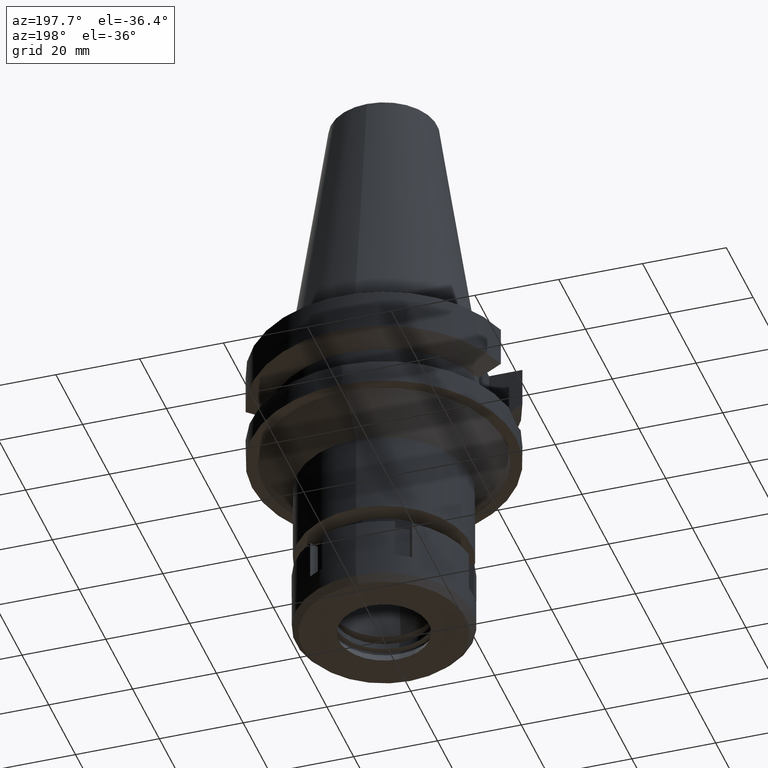
[diagram: clean part render]
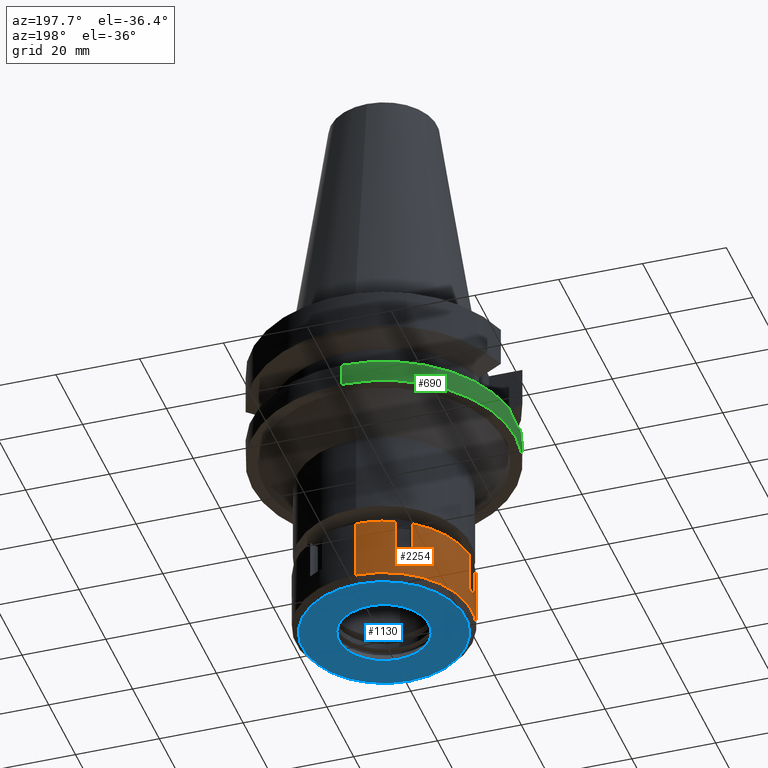
[diagram: same view with three faces highlighted in distinct colors, each labeled with its STEP entity id]
A machine part, auxiliary view with three faces highlighted in distinct colors.
Their STEP definitions:

[orange] entity #2254 — the highlighted cylindrical surface (partial cylindrical patch) has radius 21 mm, axis along (0, 0, -1).
#22 = VERTEX_POINT ( 'NONE', #2840 ) ;
#41 = CARTESIAN_POINT ( 'NONE',  ( 0.0000000000000000000, 21.00000000000000000, -14.50000000000000000 ) ) ;
#71 = LINE ( 'NONE', #873, #656 ) ;
#146 = CARTESIAN_POINT ( 'NONE',  ( -8.720221672615998898, -19.10386699022999935, -9.500000000000000000 ) ) ;
#156 = CARTESIAN_POINT ( 'NONE',  ( 0.0000000000000000000, 0.0000000000000000000, 0.0000000000000000000 ) ) ;
#173 = DIRECTION ( 'NONE',  ( 0.0000000000000000000, 0.0000000000000000000, -1.000000000000000000 ) ) ;
#190 = EDGE_CURVE ( 'NONE', #575, #2176, #2456, .T. ) ;
#205 = DIRECTION ( 'NONE',  ( 0.0000000000000000000, 1.000000000000000000, 0.0000000000000000000 ) ) ;
#211 = CARTESIAN_POINT ( 'NONE',  ( -12.18432328774999895, -17.10386699022999935, 0.0000000000000000000 ) ) ;
#241 = AXIS2_PLACEMENT_3D ( 'NONE', #156, #1002, #2939 ) ;
#352 = ORIENTED_EDGE ( 'NONE', *, *, #2846, .F. ) ;
#366 = CIRCLE ( 'NONE', #1463, 21.00000000000000711 ) ;
#374 = EDGE_CURVE ( 'NONE', #3133, #3426, #1601, .T. ) ;
#476 = CIRCLE ( 'NONE', #1730, 20.99999999999999289 ) ;
#483 = AXIS2_PLACEMENT_3D ( 'NONE', #2914, #2319, #2038 ) ;
#513 = VERTEX_POINT ( 'NONE', #636 ) ;
#519 = ORIENTED_EDGE ( 'NONE', *, *, #2204, .F. ) ;
#547 = CIRCLE ( 'NONE', #483, 21.00000000000000711 ) ;
#575 = VERTEX_POINT ( 'NONE', #674 ) ;
#620 = CARTESIAN_POINT ( 'NONE',  ( -20.90454496036999998, 2.000000000000000000, 0.0000000000000000000 ) ) ;
#636 = CARTESIAN_POINT ( 'NONE',  ( -12.18432328774999895, 17.10386699022999935, 0.0000000000000000000 ) ) ;
#656 = VECTOR ( 'NONE', #1182, 1000.000000000000000 ) ;
#674 = CARTESIAN_POINT ( 'NONE',  ( -12.18432328774999895, 17.10386699022999935, -9.500000000000000000 ) ) ;
#708 = EDGE_CURVE ( 'NONE', #3133, #913, #476, .T. ) ;
#728 = DIRECTION ( 'NONE',  ( 0.0000000000000000000, 0.0000000000000000000, -1.000000000000000000 ) ) ;
#774 = LINE ( 'NONE', #1056, #1795 ) ;
#788 = DIRECTION ( 'NONE',  ( -0.9954545219222313834, 0.09523809523810303213, 0.0000000000000000000 ) ) ;
#840 = CARTESIAN_POINT ( 'NONE',  ( -20.90454496036999998, -2.000000000000000000, -9.500000000000000000 ) ) ;
#844 = LINE ( 'NONE', #2247, #1124 ) ;
#848 = EDGE_LOOP ( 'NONE', ( #352, #1403, #2037, #2771, #1783, #1313, #990, #2489, #1125, #1831, #2169, #3167, #519, #2350, #2893, #1119 ) ) ;
#873 = CARTESIAN_POINT ( 'NONE',  ( -8.720221672615000585, -19.10386699022999935, -9.500000000000000000 ) ) ;
#887 = LINE ( 'NONE', #620, #3291 ) ;
#913 = VERTEX_POINT ( 'NONE', #1191 ) ;
#950 = DIRECTION ( 'NONE',  ( 0.0000000000000000000, 0.0000000000000000000, -1.000000000000000000 ) ) ;
#964 = CARTESIAN_POINT ( 'NONE',  ( 0.0000000000000000000, 0.0000000000000000000, 0.0000000000000000000 ) ) ;
#967 = EDGE_CURVE ( 'NONE', #2299, #3007, #71, .T. ) ;
#990 = ORIENTED_EDGE ( 'NONE', *, *, #967, .F. ) ;
#1002 = DIRECTION ( 'NONE',  ( 0.0000000000000000000, 0.0000000000000000000, -1.000000000000000000 ) ) ;
#1056 = CARTESIAN_POINT ( 'NONE',  ( -12.18432328774999895, -17.10386699022999935, 0.0000000000000000000 ) ) ;
#1067 = VERTEX_POINT ( 'NONE', #211 ) ;
#1119 = ORIENTED_EDGE ( 'NONE', *, *, #190, .T. ) ;
#1124 = VECTOR ( 'NONE', #2207, 1000.000000000000000 ) ;
#1125 = ORIENTED_EDGE ( 'NONE', *, *, #1519, .F. ) ;
#1142 = DIRECTION ( 'NONE',  ( 0.0000000000000000000, 0.0000000000000000000, 1.000000000000000000 ) ) ;
#1154 = VERTEX_POINT ( 'NONE', #41 ) ;
#1179 = AXIS2_PLACEMENT_3D ( 'NONE', #964, #3168, #1281 ) ;
#1182 = DIRECTION ( 'NONE',  ( 0.0000000000000000000, 0.0000000000000000000, 1.000000000000000000 ) ) ;
#1191 = CARTESIAN_POINT ( 'NONE',  ( -20.90454496036999998, 2.000000000000000000, -9.500000000000000000 ) ) ;
#1278 = VERTEX_POINT ( 'NONE', #3110 ) ;
#1281 = DIRECTION ( 'NONE',  ( 0.0000000000000000000, -1.000000000000000000, 0.0000000000000000000 ) ) ;
#1299 = DIRECTION ( 'NONE',  ( 0.0000000000000000000, 0.0000000000000000000, 1.000000000000000000 ) ) ;
#1313 = ORIENTED_EDGE ( 'NONE', *, *, #1758, .T. ) ;
#1338 = CARTESIAN_POINT ( 'NONE',  ( -20.90454496036999998, -2.000000000000000000, -9.500000000000000000 ) ) ;
#1391 = AXIS2_PLACEMENT_3D ( 'NONE', #3408, #1770, #2858 ) ;
#1403 = ORIENTED_EDGE ( 'NONE', *, *, #1839, .T. ) ;
#1442 = CIRCLE ( 'NONE', #2916, 20.99999999999999289 ) ;
#1450 = VECTOR ( 'NONE', #1142, 1000.000000000000000 ) ;
#1460 = CIRCLE ( 'NONE', #2073, 21.00000000000000000 ) ;
#1463 = AXIS2_PLACEMENT_3D ( 'NONE', #1806, #950, #1792 ) ;
#1481 = CARTESIAN_POINT ( 'NONE',  ( -20.90454496036999998, -2.000000000000000000, 0.0000000000000000000 ) ) ;
#1519 = EDGE_CURVE ( 'NONE', #1067, #3539, #774, .T. ) ;
#1538 = EDGE_CURVE ( 'NONE', #1067, #3426, #2068, .T. ) ;
#1578 = CIRCLE ( 'NONE', #3468, 21.00000000000000000 ) ;
#1601 = LINE ( 'NONE', #1338, #1450 ) ;
#1606 = VECTOR ( 'NONE', #3162, 1000.000000000000000 ) ;
#1610 = LINE ( 'NONE', #3277, #3173 ) ;
#1633 = CARTESIAN_POINT ( 'NONE',  ( 0.0000000000000000000, 21.00000000000000000, 0.0000000000000000000 ) ) ;
#1686 = VECTOR ( 'NONE', #3370, 1000.000000000000000 ) ;
#1711 = DIRECTION ( 'NONE',  ( 0.0000000000000000000, -1.000000000000000000, 0.0000000000000000000 ) ) ;
#1730 = AXIS2_PLACEMENT_3D ( 'NONE', #2964, #2088, #3496 ) ;
#1758 = EDGE_CURVE ( 'NONE', #1278, #3007, #1460, .T. ) ;
#1770 = DIRECTION ( 'NONE',  ( 0.0000000000000000000, 0.0000000000000000000, -1.000000000000000000 ) ) ;
#1783 = ORIENTED_EDGE ( 'NONE', *, *, #2487, .F. ) ;
#1792 = DIRECTION ( 'NONE',  ( -0.4152486510768949035, -0.9097079519157886818, 0.0000000000000000000 ) ) ;
#1795 = VECTOR ( 'NONE', #2141, 1000.000000000000000 ) ;
#1806 = CARTESIAN_POINT ( 'NONE',  ( 0.0000000000000000000, 0.0000000000000000000, -9.500000000000000000 ) ) ;
#1828 = CARTESIAN_POINT ( 'NONE',  ( 0.0000000000000000000, 0.0000000000000000000, 0.0000000000000000000 ) ) ;
#1831 = ORIENTED_EDGE ( 'NONE', *, *, #1538, .T. ) ;
#1839 = EDGE_CURVE ( 'NONE', #22, #2536, #547, .T. ) ;
#1856 = CARTESIAN_POINT ( 'NONE',  ( 0.0000000000000000000, 0.0000000000000000000, -14.50000000000000000 ) ) ;
#1950 = CARTESIAN_POINT ( 'NONE',  ( -8.720221672615000585, 19.10386699022999935, -9.500000000000000000 ) ) ;
#1986 = LINE ( 'NONE', #2192, #1686 ) ;
#2017 = LINE ( 'NONE', #2312, #1606 ) ;
#2037 = ORIENTED_EDGE ( 'NONE', *, *, #2149, .T. ) ;
#2038 = DIRECTION ( 'NONE',  ( -0.4152486510768949035, 0.9097079519157886818, 0.0000000000000000000 ) ) ;
#2047 = CYLINDRICAL_SURFACE ( 'NONE', #1179, 21.00000000000000000 ) ;
#2065 = FACE_OUTER_BOUND ( 'NONE', #848, .T. ) ;
#2068 = CIRCLE ( 'NONE', #241, 20.99999999999999645 ) ;
#2073 = AXIS2_PLACEMENT_3D ( 'NONE', #3174, #728, #1711 ) ;
#2088 = DIRECTION ( 'NONE',  ( 0.0000000000000000000, 0.0000000000000000000, -1.000000000000000000 ) ) ;
#2116 = DIRECTION ( 'NONE',  ( 0.0000000000000000000, 0.0000000000000000000, -1.000000000000000000 ) ) ;
#2141 = DIRECTION ( 'NONE',  ( 0.0000000000000000000, 0.0000000000000000000, -1.000000000000000000 ) ) ;
#2142 = CARTESIAN_POINT ( 'NONE',  ( -8.720221672615998898, -19.10386699022999935, 0.0000000000000000000 ) ) ;
#2149 = EDGE_CURVE ( 'NONE', #2536, #1154, #1986, .T. ) ;
#2169 = ORIENTED_EDGE ( 'NONE', *, *, #374, .F. ) ;
#2176 = VERTEX_POINT ( 'NONE', #1950 ) ;
#2192 = CARTESIAN_POINT ( 'NONE',  ( 0.0000000000000000000, 21.00000000000000000, 0.0000000000000000000 ) ) ;
#2204 = EDGE_CURVE ( 'NONE', #2618, #913, #887, .T. ) ;
#2207 = DIRECTION ( 'NONE',  ( 0.0000000000000000000, 0.0000000000000000000, 1.000000000000000000 ) ) ;
#2247 = CARTESIAN_POINT ( 'NONE',  ( -12.18432328774999895, 17.10386699022999935, -9.500000000000000000 ) ) ;
#2254 = ADVANCED_FACE ( 'NONE', ( #2065 ), #2047, .T. ) ;
#2273 = EDGE_CURVE ( 'NONE', #2299, #3539, #366, .T. ) ;
#2299 = VERTEX_POINT ( 'NONE', #146 ) ;
#2312 = CARTESIAN_POINT ( 'NONE',  ( -8.720221672615000585, 19.10386699022999935, 0.0000000000000000000 ) ) ;
#2319 = DIRECTION ( 'NONE',  ( 0.0000000000000000000, 0.0000000000000000000, -1.000000000000000000 ) ) ;
#2350 = ORIENTED_EDGE ( 'NONE', *, *, #3469, .T. ) ;
#2423 = VERTEX_POINT ( 'NONE', #2656 ) ;
#2456 = CIRCLE ( 'NONE', #1391, 21.00000000000000711 ) ;
#2473 = EDGE_CURVE ( 'NONE', #1154, #2423, #1578, .T. ) ;
#2487 = EDGE_CURVE ( 'NONE', #1278, #2423, #1610, .T. ) ;
#2489 = ORIENTED_EDGE ( 'NONE', *, *, #2273, .T. ) ;
#2536 = VERTEX_POINT ( 'NONE', #1633 ) ;
#2618 = VERTEX_POINT ( 'NONE', #2741 ) ;
#2656 = CARTESIAN_POINT ( 'NONE',  ( 0.0000000000000000000, -21.00000000000000000, -14.50000000000000000 ) ) ;
#2704 = EDGE_CURVE ( 'NONE', #575, #513, #844, .T. ) ;
#2741 = CARTESIAN_POINT ( 'NONE',  ( -20.90454496036999998, 2.000000000000000000, 0.0000000000000000000 ) ) ;
#2771 = ORIENTED_EDGE ( 'NONE', *, *, #2473, .T. ) ;
#2786 = DIRECTION ( 'NONE',  ( 0.0000000000000000000, 0.0000000000000000000, -1.000000000000000000 ) ) ;
#2840 = CARTESIAN_POINT ( 'NONE',  ( -8.720221672615000585, 19.10386699022999935, 0.0000000000000000000 ) ) ;
#2846 = EDGE_CURVE ( 'NONE', #22, #2176, #2017, .T. ) ;
#2858 = DIRECTION ( 'NONE',  ( -0.5802058708453158298, 0.8144698566777217597, 0.0000000000000000000 ) ) ;
#2893 = ORIENTED_EDGE ( 'NONE', *, *, #2704, .F. ) ;
#2914 = CARTESIAN_POINT ( 'NONE',  ( 0.0000000000000000000, 0.0000000000000000000, 0.0000000000000000000 ) ) ;
#2916 = AXIS2_PLACEMENT_3D ( 'NONE', #1828, #173, #788 ) ;
#2939 = DIRECTION ( 'NONE',  ( -0.5802058708454290725, -0.8144698566776411575, 0.0000000000000000000 ) ) ;
#2964 = CARTESIAN_POINT ( 'NONE',  ( 0.0000000000000000000, 0.0000000000000000000, -9.500000000000000000 ) ) ;
#3007 = VERTEX_POINT ( 'NONE', #2142 ) ;
#3110 = CARTESIAN_POINT ( 'NONE',  ( 0.0000000000000000000, -21.00000000000000000, 0.0000000000000000000 ) ) ;
#3133 = VERTEX_POINT ( 'NONE', #840 ) ;
#3162 = DIRECTION ( 'NONE',  ( 0.0000000000000000000, 0.0000000000000000000, -1.000000000000000000 ) ) ;
#3167 = ORIENTED_EDGE ( 'NONE', *, *, #708, .T. ) ;
#3168 = DIRECTION ( 'NONE',  ( 0.0000000000000000000, 0.0000000000000000000, -1.000000000000000000 ) ) ;
#3173 = VECTOR ( 'NONE', #2116, 1000.000000000000000 ) ;
#3174 = CARTESIAN_POINT ( 'NONE',  ( 0.0000000000000000000, 0.0000000000000000000, 0.0000000000000000000 ) ) ;
#3277 = CARTESIAN_POINT ( 'NONE',  ( 0.0000000000000000000, -21.00000000000000000, 0.0000000000000000000 ) ) ;
#3291 = VECTOR ( 'NONE', #2786, 1000.000000000000000 ) ;
#3370 = DIRECTION ( 'NONE',  ( 0.0000000000000000000, 0.0000000000000000000, -1.000000000000000000 ) ) ;
#3408 = CARTESIAN_POINT ( 'NONE',  ( 0.0000000000000000000, 0.0000000000000000000, -9.500000000000000000 ) ) ;
#3426 = VERTEX_POINT ( 'NONE', #1481 ) ;
#3453 = CARTESIAN_POINT ( 'NONE',  ( -12.18432328774999895, -17.10386699022999935, -9.500000000000000000 ) ) ;
#3468 = AXIS2_PLACEMENT_3D ( 'NONE', #1856, #1299, #205 ) ;
#3469 = EDGE_CURVE ( 'NONE', #2618, #513, #1442, .T. ) ;
#3496 = DIRECTION ( 'NONE',  ( -0.9954545219222313834, -0.09523809523810303213, 0.0000000000000000000 ) ) ;
#3539 = VERTEX_POINT ( 'NONE', #3453 ) ;

[blue] entity #1130 — the highlighted planar face has unit normal (0, 0, -1).
#20 = CARTESIAN_POINT ( 'NONE',  ( 0.0000000000000000000, 0.0000000000000000000, -16.00000000000000000 ) ) ;
#65 = AXIS2_PLACEMENT_3D ( 'NONE', #180, #3136, #2367 ) ;
#180 = CARTESIAN_POINT ( 'NONE',  ( 0.0000000000000000000, 0.0000000000000000000, -16.00000000000000000 ) ) ;
#298 = CIRCLE ( 'NONE', #2064, 10.75000000000000000 ) ;
#354 = DIRECTION ( 'NONE',  ( 0.0000000000000000000, -1.000000000000000000, 0.0000000000000000000 ) ) ;
#581 = CARTESIAN_POINT ( 'NONE',  ( 0.0000000000000000000, 0.0000000000000000000, -16.00000000000000000 ) ) ;
#639 = PLANE ( 'NONE',  #65 ) ;
#684 = EDGE_CURVE ( 'NONE', #1817, #3003, #2237, .T. ) ;
#714 = AXIS2_PLACEMENT_3D ( 'NONE', #2791, #3411, #746 ) ;
#746 = DIRECTION ( 'NONE',  ( 0.0000000000000000000, 1.000000000000000000, 0.0000000000000000000 ) ) ;
#825 = EDGE_CURVE ( 'NONE', #1893, #3129, #298, .T. ) ;
#838 = EDGE_CURVE ( 'NONE', #3003, #1817, #2570, .T. ) ;
#991 = CARTESIAN_POINT ( 'NONE',  ( 0.0000000000000000000, -10.75000000000000000, -16.00000000000000000 ) ) ;
#1090 = CARTESIAN_POINT ( 'NONE',  ( 0.0000000000000000000, 10.75000000000000000, -16.00000000000000000 ) ) ;
#1115 = DIRECTION ( 'NONE',  ( 0.0000000000000000000, 0.0000000000000000000, 1.000000000000000000 ) ) ;
#1130 = ADVANCED_FACE ( 'NONE', ( #3412, #1183 ), #639, .T. ) ;
#1183 = FACE_BOUND ( 'NONE', #2028, .T. ) ;
#1458 = DIRECTION ( 'NONE',  ( 0.0000000000000000000, 1.000000000000000000, 0.0000000000000000000 ) ) ;
#1623 = CIRCLE ( 'NONE', #714, 10.75000000000000000 ) ;
#1817 = VERTEX_POINT ( 'NONE', #2074 ) ;
#1836 = EDGE_CURVE ( 'NONE', #3129, #1893, #1623, .T. ) ;
#1893 = VERTEX_POINT ( 'NONE', #991 ) ;
#1914 = DIRECTION ( 'NONE',  ( 0.0000000000000000000, 0.0000000000000000000, 1.000000000000000000 ) ) ;
#2028 = EDGE_LOOP ( 'NONE', ( #3405, #2404 ) ) ;
#2064 = AXIS2_PLACEMENT_3D ( 'NONE', #20, #2803, #354 ) ;
#2074 = CARTESIAN_POINT ( 'NONE',  ( 0.0000000000000000000, -19.50000000000000000, -16.00000000000000000 ) ) ;
#2237 = CIRCLE ( 'NONE', #2567, 19.50000000000000000 ) ;
#2367 = DIRECTION ( 'NONE',  ( 0.0000000000000000000, -1.000000000000000000, 0.0000000000000000000 ) ) ;
#2404 = ORIENTED_EDGE ( 'NONE', *, *, #825, .F. ) ;
#2517 = AXIS2_PLACEMENT_3D ( 'NONE', #581, #1914, #1458 ) ;
#2567 = AXIS2_PLACEMENT_3D ( 'NONE', #2960, #1115, #2655 ) ;
#2570 = CIRCLE ( 'NONE', #2517, 19.50000000000000000 ) ;
#2630 = CARTESIAN_POINT ( 'NONE',  ( 0.0000000000000000000, 19.50000000000000000, -16.00000000000000000 ) ) ;
#2655 = DIRECTION ( 'NONE',  ( 0.0000000000000000000, -1.000000000000000000, 0.0000000000000000000 ) ) ;
#2660 = ORIENTED_EDGE ( 'NONE', *, *, #684, .F. ) ;
#2791 = CARTESIAN_POINT ( 'NONE',  ( 0.0000000000000000000, 0.0000000000000000000, -16.00000000000000000 ) ) ;
#2803 = DIRECTION ( 'NONE',  ( 0.0000000000000000000, 0.0000000000000000000, -1.000000000000000000 ) ) ;
#2960 = CARTESIAN_POINT ( 'NONE',  ( 0.0000000000000000000, 0.0000000000000000000, -16.00000000000000000 ) ) ;
#2993 = EDGE_LOOP ( 'NONE', ( #3354, #2660 ) ) ;
#3003 = VERTEX_POINT ( 'NONE', #2630 ) ;
#3129 = VERTEX_POINT ( 'NONE', #1090 ) ;
#3136 = DIRECTION ( 'NONE',  ( 0.0000000000000000000, 0.0000000000000000000, -1.000000000000000000 ) ) ;
#3354 = ORIENTED_EDGE ( 'NONE', *, *, #838, .F. ) ;
#3405 = ORIENTED_EDGE ( 'NONE', *, *, #1836, .F. ) ;
#3411 = DIRECTION ( 'NONE',  ( 0.0000000000000000000, 0.0000000000000000000, -1.000000000000000000 ) ) ;
#3412 = FACE_OUTER_BOUND ( 'NONE', #2993, .T. ) ;

[green] entity #690 — the highlighted cylindrical surface (partial cylindrical patch) has radius 31.5 mm, axis along (0, 0, -1).
#9 = LINE ( 'NONE', #2773, #2293 ) ;
#82 = CARTESIAN_POINT ( 'NONE',  ( 0.0000000000000000000, 31.50000000000000000, -27.00000000000000000 ) ) ;
#120 = CARTESIAN_POINT ( 'NONE',  ( -31.47072699418135855, -1.368170334991331449, -22.88533600626637465 ) ) ;
#177 = DIRECTION ( 'NONE',  ( 0.0000000000000000000, 0.0000000000000000000, 1.000000000000000000 ) ) ;
#192 = DIRECTION ( 'NONE',  ( -0.9898094849552905306, 0.1423979757318985240, 0.0000000000000000000 ) ) ;
#226 = ORIENTED_EDGE ( 'NONE', *, *, #1072, .T. ) ;
#248 = DIRECTION ( 'NONE',  ( 0.0000000000000000000, -1.000000000000000000, 0.0000000000000000000 ) ) ;
#266 = CARTESIAN_POINT ( 'NONE',  ( 0.0000000000000000000, -31.50000000000000000, -21.63449434733000132 ) ) ;
#434 = CARTESIAN_POINT ( 'NONE',  ( -31.41451779209809914, -2.319272271064789503, -22.65867282528903814 ) ) ;
#468 = DIRECTION ( 'NONE',  ( 0.0000000000000000000, 0.0000000000000000000, -1.000000000000000000 ) ) ;
#472 = VERTEX_POINT ( 'NONE', #2270 ) ;
#501 = FACE_OUTER_BOUND ( 'NONE', #2666, .T. ) ;
#548 = VERTEX_POINT ( 'NONE', #3119 ) ;
#601 = ORIENTED_EDGE ( 'NONE', *, *, #918, .T. ) ;
#627 = DIRECTION ( 'NONE',  ( 0.0000000000000000000, -1.000000000000000000, 0.0000000000000000000 ) ) ;
#642 = CARTESIAN_POINT ( 'NONE',  ( -31.27838846380235438, 3.744638241630056985, -22.08718706894690342 ) ) ;
#676 = CARTESIAN_POINT ( 'NONE',  ( -31.49988075799869236, -0.3932938145232813820, -22.99952906081512083 ) ) ;
#690 = ADVANCED_FACE ( 'NONE', ( #501 ), #2640, .T. ) ;
#749 = CARTESIAN_POINT ( 'NONE',  ( -31.46164955142648267, -1.563742733637415228, -22.84919402122146082 ) ) ;
#756 = CIRCLE ( 'NONE', #2505, 31.50000000000000000 ) ;
#773 = CIRCLE ( 'NONE', #3224, 31.50000000000000000 ) ;
#819 = AXIS2_PLACEMENT_3D ( 'NONE', #1861, #468, #248 ) ;
#866 = VECTOR ( 'NONE', #2080, 1000.000000000000000 ) ;
#895 = ORIENTED_EDGE ( 'NONE', *, *, #3069, .F. ) ;
#898 = DIRECTION ( 'NONE',  ( 0.0000000000000000000, 0.0000000000000000000, -1.000000000000000000 ) ) ;
#918 = EDGE_CURVE ( 'NONE', #472, #2072, #9, .T. ) ;
#940 = CARTESIAN_POINT ( 'NONE',  ( -31.41200430603703708, 2.353176799736146574, -22.64842219027120152 ) ) ;
#1003 = CARTESIAN_POINT ( 'NONE',  ( 0.0000000000000000000, -31.50000000000000000, -21.63449434733000132 ) ) ;
#1014 = DIRECTION ( 'NONE',  ( 0.0000000000000000000, 0.0000000000000000000, -1.000000000000000000 ) ) ;
#1030 = CARTESIAN_POINT ( 'NONE',  ( -31.41354641493285271, -2.332384000905852073, -22.65471317283296315 ) ) ;
#1053 = CARTESIAN_POINT ( 'NONE',  ( -31.42499671940193195, -2.173479871767835636, -22.70131995672888081 ) ) ;
#1072 = EDGE_CURVE ( 'NONE', #1436, #472, #3396, .T. ) ;
#1167 = CARTESIAN_POINT ( 'NONE',  ( 0.0000000000000000000, 0.0000000000000000000, -21.63449434733000132 ) ) ;
#1217 = CARTESIAN_POINT ( 'NONE',  ( -31.23221634387357071, 4.115620490014532784, -21.88272112328722230 ) ) ;
#1240 = CARTESIAN_POINT ( 'NONE',  ( -31.39031131249693374, 2.628187298205685973, -22.55983422595531707 ) ) ;
#1388 = EDGE_CURVE ( 'NONE', #2072, #548, #773, .T. ) ;
#1436 = VERTEX_POINT ( 'NONE', #3194 ) ;
#1466 = CARTESIAN_POINT ( 'NONE',  ( -31.35488044598670143, 3.022543740818571134, -22.41338040372371054 ) ) ;
#1495 = CARTESIAN_POINT ( 'NONE',  ( -31.49254817246030669, -0.7824343147936900777, -22.97160126998500473 ) ) ;
#1515 = CARTESIAN_POINT ( 'NONE',  ( -31.17899877608999759, 4.485536235554000051, -21.63449434733000132 ) ) ;
#1548 = CARTESIAN_POINT ( 'NONE',  ( -31.44532781230133978, -1.856703196141314960, -22.78359225527565712 ) ) ;
#1572 = CARTESIAN_POINT ( 'NONE',  ( -31.41895388234278030, -2.258557297389593099, -22.67674196858785862 ) ) ;
#1728 = CARTESIAN_POINT ( 'NONE',  ( -31.40736225803954085, 2.414206324005313764, -22.62949227797157903 ) ) ;
#1739 = ORIENTED_EDGE ( 'NONE', *, *, #1388, .T. ) ;
#1790 = VERTEX_POINT ( 'NONE', #2899 ) ;
#1861 = CARTESIAN_POINT ( 'NONE',  ( 0.0000000000000000000, 2.106637423893000012E-14, 72.01999999999999602 ) ) ;
#1868 = CARTESIAN_POINT ( 'NONE',  ( 0.0000000000000000000, 2.106637423893000012E-14, -27.00000000000000000 ) ) ;
#2058 = VERTEX_POINT ( 'NONE', #266 ) ;
#2072 = VERTEX_POINT ( 'NONE', #82 ) ;
#2080 = DIRECTION ( 'NONE',  ( 0.0000000000000000000, -1.105773104655000034E-13, -1.000000000000000000 ) ) ;
#2125 = CARTESIAN_POINT ( 'NONE',  ( -31.17899877608999759, -4.485536235554000051, -21.63449434733000132 ) ) ;
#2270 = CARTESIAN_POINT ( 'NONE',  ( 0.0000000000000000000, 31.50000000000000000, -21.63449434733000132 ) ) ;
#2287 = CARTESIAN_POINT ( 'NONE',  ( -31.37894136415111390, 2.758863631486012657, -22.51306821943488856 ) ) ;
#2293 = VECTOR ( 'NONE', #3073, 1000.000000000000000 ) ;
#2309 = CARTESIAN_POINT ( 'NONE',  ( -31.40242035844505963, 2.478036592756426515, -22.60933024863646068 ) ) ;
#2380 = CARTESIAN_POINT ( 'NONE',  ( -31.28475554409219939, -3.750420082866723348, -22.12778373750796135 ) ) ;
#2381 = DIRECTION ( 'NONE',  ( 0.0000000000000000000, 1.000000000000000000, 0.0000000000000000000 ) ) ;
#2387 = CARTESIAN_POINT ( 'NONE',  ( -31.43649054899053752, -2.003082981858137934, -22.74794518897341433 ) ) ;
#2505 = AXIS2_PLACEMENT_3D ( 'NONE', #1167, #898, #627 ) ;
#2640 = CYLINDRICAL_SURFACE ( 'NONE', #819, 31.50000000000000000 ) ;
#2666 = EDGE_LOOP ( 'NONE', ( #226, #601, #1739, #895, #3203, #3432 ) ) ;
#2773 = CARTESIAN_POINT ( 'NONE',  ( 0.0000000000000000000, 31.50000000000000000, -21.63449434733000132 ) ) ;
#2899 = CARTESIAN_POINT ( 'NONE',  ( -31.17899877608999759, -4.485536235554000051, -21.63449434733000132 ) ) ;
#2901 = CARTESIAN_POINT ( 'NONE',  ( -31.36267722272077663, -3.014176567379072580, -22.44730567392663545 ) ) ;
#2982 = AXIS2_PLACEMENT_3D ( 'NONE', #3154, #1014, #192 ) ;
#3069 = EDGE_CURVE ( 'NONE', #2058, #548, #3492, .T. ) ;
#3073 = DIRECTION ( 'NONE',  ( 0.0000000000000000000, 1.099151708819000049E-13, -1.000000000000000000 ) ) ;
#3119 = CARTESIAN_POINT ( 'NONE',  ( 0.0000000000000000000, -31.50000000000000000, -27.00000000000000000 ) ) ;
#3120 = CARTESIAN_POINT ( 'NONE',  ( -31.50023391467115985, 0.7573065430441143775, -23.00092412718316837 ) ) ;
#3154 = CARTESIAN_POINT ( 'NONE',  ( 0.0000000000000000000, 0.0000000000000000000, -21.63449434733000132 ) ) ;
#3192 = EDGE_CURVE ( 'NONE', #2058, #1790, #756, .T. ) ;
#3194 = CARTESIAN_POINT ( 'NONE',  ( -31.17899877608999759, 4.485536235554000051, -21.63449434733000132 ) ) ;
#3197 = B_SPLINE_CURVE_WITH_KNOTS ( 'NONE', 3,
 ( #1515, #1217, #642, #3430, #1466, #2287, #1240, #2309, #1728, #3413, #940, #3377, #3120, #676, #1495, #120, #749, #1548, #2387, #1053, #1572, #3473, #434, #1030, #2901, #2380, #2125 ),
 .UNSPECIFIED., .F., .F.,
 ( 4, 2, 2, 1, 1, 2, 2, 2, 2, 2, 1, 1, 1, 2, 2, 4 ),
 ( 0.0000000000000000000, 0.1250000000000089373, 0.1875000000000136280, 0.2187500000000158762, 0.2343750000000169031, 0.2421875000000172085, 0.2500000000000174860, 0.5000000000000246470, 0.6250000000000281997, 0.6875000000000299760, 0.7187500000000308642, 0.7343750000000311973, 0.7421875000000313083, 0.7460937500000310862, 0.7500000000000309752, 1.000000000000000000 ),
 .UNSPECIFIED. ) ;
#3203 = ORIENTED_EDGE ( 'NONE', *, *, #3192, .T. ) ;
#3224 = AXIS2_PLACEMENT_3D ( 'NONE', #1868, #177, #2381 ) ;
#3377 = CARTESIAN_POINT ( 'NONE',  ( -31.47150441655300313, 1.550750679916251817, -22.89093377989257760 ) ) ;
#3396 = CIRCLE ( 'NONE', #2982, 31.50000000000001421 ) ;
#3413 = CARTESIAN_POINT ( 'NONE',  ( -31.41060181520782280, 2.371771208675421239, -22.64270402108325797 ) ) ;
#3430 = CARTESIAN_POINT ( 'NONE',  ( -31.33707847191337947, 3.201445230652806284, -22.33871180515154720 ) ) ;
#3432 = ORIENTED_EDGE ( 'NONE', *, *, #3439, .F. ) ;
#3439 = EDGE_CURVE ( 'NONE', #1436, #1790, #3197, .T. ) ;
#3473 = CARTESIAN_POINT ( 'NONE',  ( -31.41630068311784285, -2.294990303375051610, -22.66593676115183698 ) ) ;
#3492 = LINE ( 'NONE', #1003, #866 ) ;